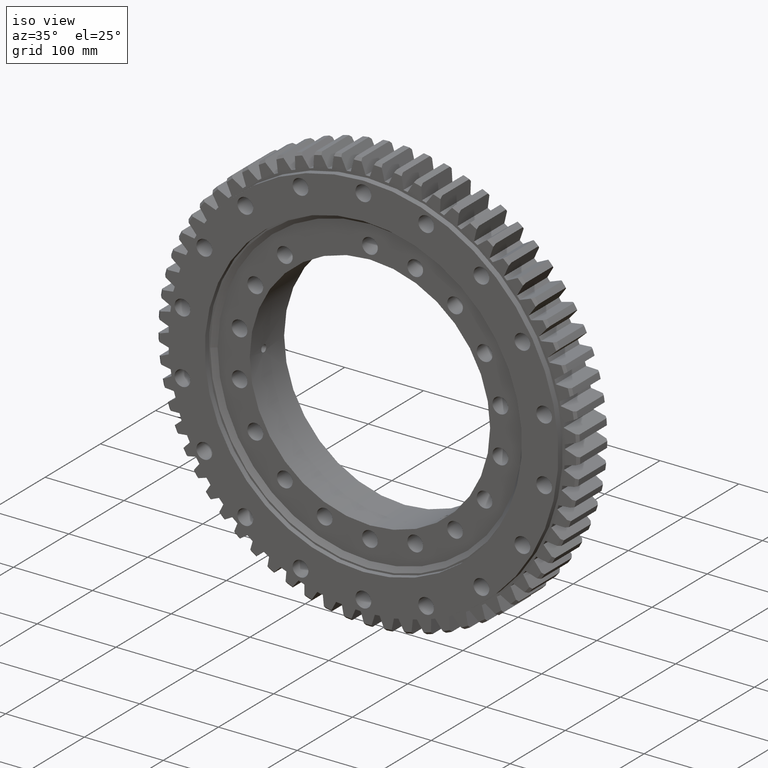
[diagram: clean part render]
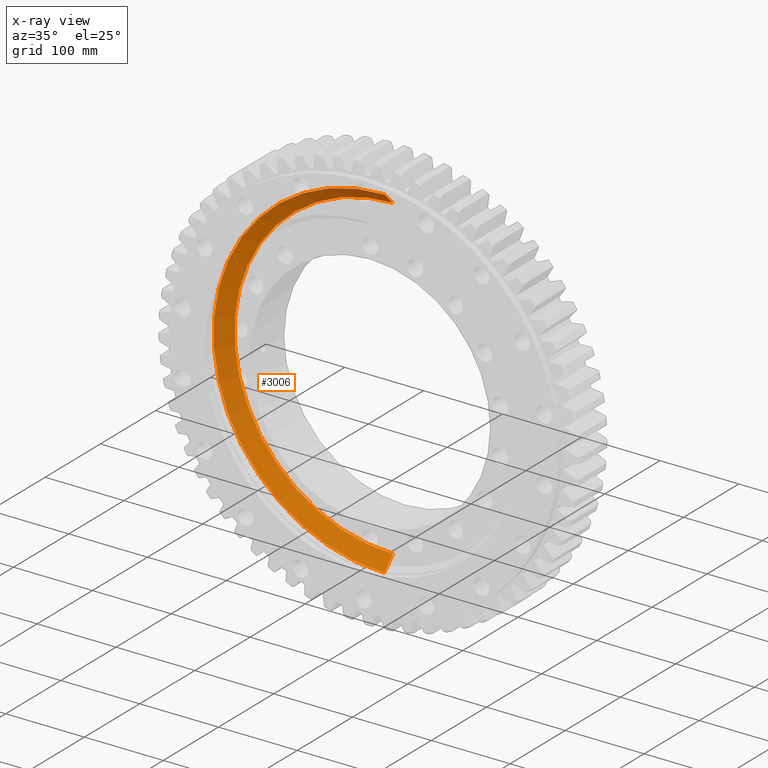
[diagram: x-ray — body ghosted, one internal face saturated and labeled with its STEP entity id]
A machine part, iso view, then the same camera in x-ray: the body is ghosted and one INTERNAL B-rep face — a face not visible from any outside direction — is saturated and labeled: STEP entity #3006.
In plain terms, the highlighted conical surface has half-angle 45 deg.
Its self-contained STEP definition (entity closure, byte-faithful):
#946 = CARTESIAN_POINT ( 'NONE',  ( 0.0000000000000000000, 16.42766952966370700, -201.2500000000000000 ) ) ;
#2127 = EDGE_CURVE ( 'NONE', #5730, #3521, #14843, .T. ) ;
#2411 = DIRECTION ( 'NONE',  ( 0.0000000000000000000, -0.7071067811865489100, -0.7071067811865460200 ) ) ;
#2451 = CARTESIAN_POINT ( 'NONE',  ( 0.0000000000000000000, 16.42766952966370700, 0.0000000000000000000 ) ) ;
#2612 = VECTOR ( 'NONE', #2411, 1000.000000000000100 ) ;
#3006 = ADVANCED_FACE ( 'NONE', ( #15838 ), #15377, .F. ) ;
#3521 = VERTEX_POINT ( 'NONE', #11203 ) ;
#4719 = CARTESIAN_POINT ( 'NONE',  ( 0.0000000000000000000, 16.42766952966370700, 0.0000000000000000000 ) ) ;
#4817 = DIRECTION ( 'NONE',  ( 0.0000000000000000000, 0.0000000000000000000, 1.000000000000000000 ) ) ;
#5372 = AXIS2_PLACEMENT_3D ( 'NONE', #4719, #12125, #10591 ) ;
#5607 = VERTEX_POINT ( 'NONE', #9909 ) ;
#5730 = VERTEX_POINT ( 'NONE', #10459 ) ;
#6084 = VECTOR ( 'NONE', #16599, 1000.000000000000100 ) ;
#6294 = CARTESIAN_POINT ( 'NONE',  ( 0.0000000000000000000, 0.7071067811865345800, 0.0000000000000000000 ) ) ;
#6328 = ORIENTED_EDGE ( 'NONE', *, *, #2127, .F. ) ;
#6391 = CARTESIAN_POINT ( 'NONE',  ( 2.464601683284048300E-014, 16.42766952966370700, 201.2500000000000000 ) ) ;
#6988 = ORIENTED_EDGE ( 'NONE', *, *, #18631, .T. ) ;
#7097 = EDGE_CURVE ( 'NONE', #17639, #5607, #12613, .T. ) ;
#9732 = DIRECTION ( 'NONE',  ( 0.0000000000000000000, -1.000000000000000000, 0.0000000000000000000 ) ) ;
#9909 = CARTESIAN_POINT ( 'NONE',  ( 2.560862367537636600E-014, 16.42766952966370700, 201.2500000000000000 ) ) ;
#9965 = LINE ( 'NONE', #6391, #6084 ) ;
#10459 = CARTESIAN_POINT ( 'NONE',  ( 2.657123051791224500E-014, 0.7071067811865345800, -216.9705627484771100 ) ) ;
#10591 = DIRECTION ( 'NONE',  ( 0.0000000000000000000, 0.0000000000000000000, 1.000000000000000000 ) ) ;
#10866 = EDGE_CURVE ( 'NONE', #17639, #5730, #14300, .T. ) ;
#10916 = ORIENTED_EDGE ( 'NONE', *, *, #10866, .F. ) ;
#11203 = CARTESIAN_POINT ( 'NONE',  ( 0.0000000000000000000, 0.7071067811865345800, 216.9705627484771100 ) ) ;
#12125 = DIRECTION ( 'NONE',  ( -0.0000000000000000000, 1.000000000000000000, -0.0000000000000000000 ) ) ;
#12613 = CIRCLE ( 'NONE', #5372, 201.2500000000000000 ) ;
#13017 = ORIENTED_EDGE ( 'NONE', *, *, #7097, .T. ) ;
#13810 = EDGE_LOOP ( 'NONE', ( #13017, #6988, #6328, #10916 ) ) ;
#14238 = DIRECTION ( 'NONE',  ( 0.0000000000000000000, 0.0000000000000000000, -1.000000000000000000 ) ) ;
#14300 = LINE ( 'NONE', #946, #2612 ) ;
#14723 = AXIS2_PLACEMENT_3D ( 'NONE', #6294, #15045, #4817 ) ;
#14843 = CIRCLE ( 'NONE', #14723, 216.9705627484771100 ) ;
#15045 = DIRECTION ( 'NONE',  ( -0.0000000000000000000, 1.000000000000000000, -0.0000000000000000000 ) ) ;
#15377 = CONICAL_SURFACE ( 'NONE', #17538, 201.2500000000000000, 0.7853981633974461700 ) ;
#15838 = FACE_OUTER_BOUND ( 'NONE', #13810, .T. ) ;
#16599 = DIRECTION ( 'NONE',  ( 8.659560562354913100E-017, -0.7071067811865489100, 0.7071067811865460200 ) ) ;
#17477 = CARTESIAN_POINT ( 'NONE',  ( 0.0000000000000000000, 16.42766952966370700, -201.2500000000000000 ) ) ;
#17538 = AXIS2_PLACEMENT_3D ( 'NONE', #2451, #9732, #14238 ) ;
#17639 = VERTEX_POINT ( 'NONE', #17477 ) ;
#18631 = EDGE_CURVE ( 'NONE', #5607, #3521, #9965, .T. ) ;